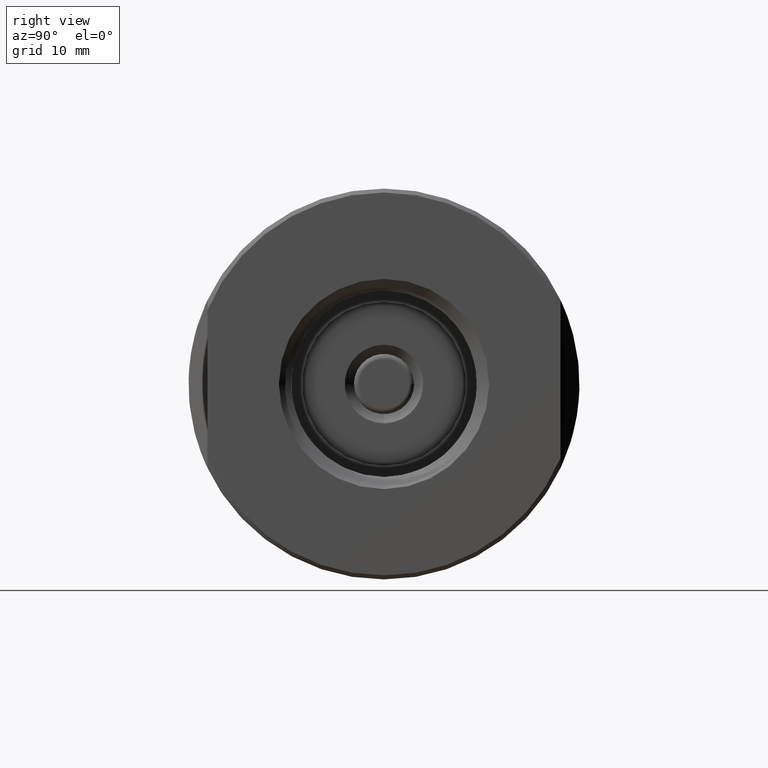
[diagram: clean part render]
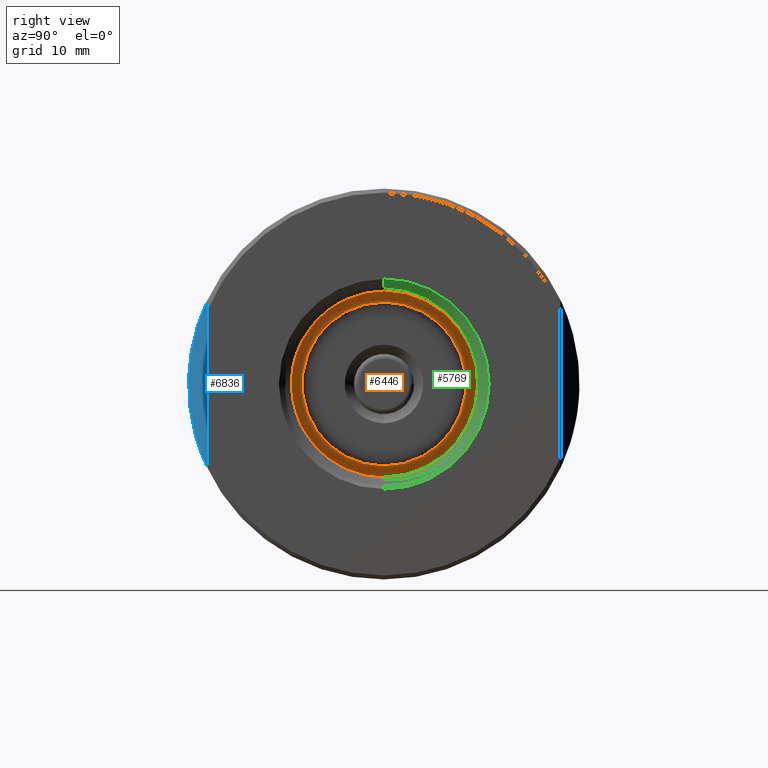
[diagram: same view with three faces highlighted in distinct colors, each labeled with its STEP entity id]
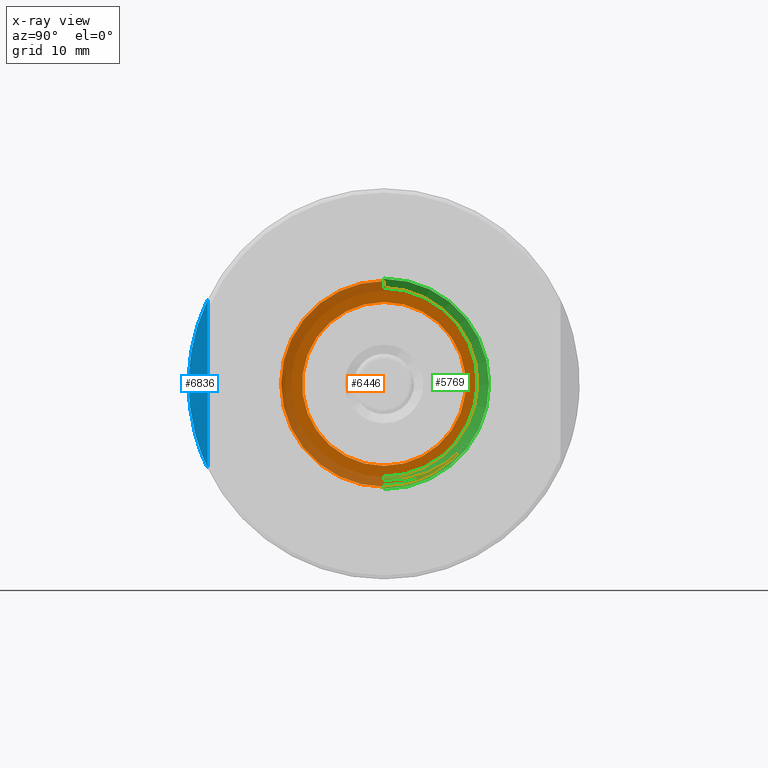
[diagram: x-ray of the same camera — body ghosted, the three highlighted faces saturated]
A machine part, right view with three faces highlighted in distinct colors.
The next image is the same camera in x-ray (body ghosted, the three faces saturated) — at least one of them is partly hidden behind the body in this view.
Their STEP definitions:

[orange] entity #6446 — the highlighted planar face has unit normal (1, 0, 0).
#372 = CIRCLE ( 'NONE', #11230, 0.4060000000000002496 ) ;
#504 = ORIENTED_EDGE ( 'NONE', *, *, #1006, .F. ) ;
#525 = CARTESIAN_POINT ( 'NONE',  ( 0.7500000000000001110, 0.0000000000000000000, 0.0000000000000000000 ) ) ;
#687 = DIRECTION ( 'NONE',  ( -1.000000000000000000, -0.0000000000000000000, -0.0000000000000000000 ) ) ;
#1006 = EDGE_CURVE ( 'NONE', #2349, #2703, #1699, .T. ) ;
#1699 = CIRCLE ( 'NONE', #5213, 0.5100000000000002309 ) ;
#1775 = AXIS2_PLACEMENT_3D ( 'NONE', #11449, #1949, #6169 ) ;
#1949 = DIRECTION ( 'NONE',  ( 1.000000000000000000, 0.0000000000000000000, 0.0000000000000000000 ) ) ;
#2349 = VERTEX_POINT ( 'NONE', #2555 ) ;
#2359 = AXIS2_PLACEMENT_3D ( 'NONE', #525, #5060, #2924 ) ;
#2555 = CARTESIAN_POINT ( 'NONE',  ( 0.7500000000000001110, 6.245698675651503551E-17, -0.5100000000000002309 ) ) ;
#2703 = VERTEX_POINT ( 'NONE', #10232 ) ;
#2853 = FACE_OUTER_BOUND ( 'NONE', #12001, .T. ) ;
#2924 = DIRECTION ( 'NONE',  ( 0.0000000000000000000, 0.0000000000000000000, 1.000000000000000000 ) ) ;
#3735 = ORIENTED_EDGE ( 'NONE', *, *, #7718, .T. ) ;
#3925 = DIRECTION ( 'NONE',  ( 0.0000000000000000000, 0.0000000000000000000, 1.000000000000000000 ) ) ;
#4737 = DIRECTION ( 'NONE',  ( -1.000000000000000000, -0.0000000000000000000, -0.0000000000000000000 ) ) ;
#5060 = DIRECTION ( 'NONE',  ( -1.000000000000000000, -0.0000000000000000000, -0.0000000000000000000 ) ) ;
#5213 = AXIS2_PLACEMENT_3D ( 'NONE', #5944, #687, #12064 ) ;
#5944 = CARTESIAN_POINT ( 'NONE',  ( 0.7500000000000001110, 0.0000000000000000000, 0.0000000000000000000 ) ) ;
#6169 = DIRECTION ( 'NONE',  ( 0.0000000000000000000, 0.0000000000000000000, -1.000000000000000000 ) ) ;
#6241 = VERTEX_POINT ( 'NONE', #6730 ) ;
#6446 = ADVANCED_FACE ( 'NONE', ( #12356, #2853 ), #7976, .T. ) ;
#6567 = CARTESIAN_POINT ( 'NONE',  ( 0.7500000000000001110, 0.0000000000000000000, 0.0000000000000000000 ) ) ;
#6577 = CIRCLE ( 'NONE', #13452, 0.4060000000000002496 ) ;
#6730 = CARTESIAN_POINT ( 'NONE',  ( 0.7500000000000001110, 0.0000000000000000000, 0.4060000000000002496 ) ) ;
#7706 = ORIENTED_EDGE ( 'NONE', *, *, #12546, .T. ) ;
#7718 = EDGE_CURVE ( 'NONE', #6241, #11073, #372, .T. ) ;
#7854 = ORIENTED_EDGE ( 'NONE', *, *, #11459, .F. ) ;
#7976 = PLANE ( 'NONE',  #1775 ) ;
#9107 = CARTESIAN_POINT ( 'NONE',  ( 0.7500000000000001110, 0.0000000000000000000, 0.0000000000000000000 ) ) ;
#10232 = CARTESIAN_POINT ( 'NONE',  ( 0.7500000000000001110, 0.0000000000000000000, 0.5100000000000002309 ) ) ;
#10811 = DIRECTION ( 'NONE',  ( -1.000000000000000000, -0.0000000000000000000, -0.0000000000000000000 ) ) ;
#11073 = VERTEX_POINT ( 'NONE', #12461 ) ;
#11230 = AXIS2_PLACEMENT_3D ( 'NONE', #6567, #10811, #3925 ) ;
#11344 = EDGE_LOOP ( 'NONE', ( #3735, #7706 ) ) ;
#11449 = CARTESIAN_POINT ( 'NONE',  ( 0.7500000000000001110, 0.0000000000000000000, 0.0000000000000000000 ) ) ;
#11459 = EDGE_CURVE ( 'NONE', #2703, #2349, #12986, .T. ) ;
#12001 = EDGE_LOOP ( 'NONE', ( #7854, #504 ) ) ;
#12064 = DIRECTION ( 'NONE',  ( 0.0000000000000000000, 0.0000000000000000000, 1.000000000000000000 ) ) ;
#12356 = FACE_BOUND ( 'NONE', #11344, .T. ) ;
#12461 = CARTESIAN_POINT ( 'NONE',  ( 0.7500000000000001110, 4.972066004538257186E-17, -0.4060000000000002496 ) ) ;
#12546 = EDGE_CURVE ( 'NONE', #11073, #6241, #6577, .T. ) ;
#12986 = CIRCLE ( 'NONE', #2359, 0.5100000000000002309 ) ;
#13213 = DIRECTION ( 'NONE',  ( 0.0000000000000000000, 0.0000000000000000000, 1.000000000000000000 ) ) ;
#13452 = AXIS2_PLACEMENT_3D ( 'NONE', #9107, #4737, #13213 ) ;

[blue] entity #6836 — the highlighted planar face has unit normal (-0.7071, 0.7071, 0).
#670 = PLANE ( 'NONE',  #11429 ) ;
#964 = CARTESIAN_POINT ( 'NONE',  ( 1.199999999999999734, -0.8750000000000001110, 0.4157542092390650867 ) ) ;
#1529 = CARTESIAN_POINT ( 'NONE',  ( 1.199999999999999734, -0.8750000000000001110, -0.4157542092390651978 ) ) ;
#1547 = VERTEX_POINT ( 'NONE', #964 ) ;
#2678 = CARTESIAN_POINT ( 'NONE',  ( 1.199999999999999734, -0.8750000000000001110, -0.9687500000000000000 ) ) ;
#2820 = FACE_OUTER_BOUND ( 'NONE', #12448, .T. ) ;
#3083 = CARTESIAN_POINT ( 'NONE',  ( 1.072844827586208805, -1.002155172413792927, -0.1481423044415057788 ) ) ;
#3260 = VECTOR ( 'NONE', #5059, 39.37007874015748143 ) ;
#4221 = LINE ( 'NONE', #10685, #3260 ) ;
#4319 = VERTEX_POINT ( 'NONE', #1529 ) ;
#5059 = DIRECTION ( 'NONE',  ( -0.0000000000000000000, -0.0000000000000000000, 1.000000000000000000 ) ) ;
#6836 = ADVANCED_FACE ( 'NONE', ( #2820 ), #670, .F. ) ;
#7242 = CARTESIAN_POINT ( 'NONE',  ( 1.199999999999999734, -0.8750000000000001110, 0.4157542092390650867 ) ) ;
#7297 =( BOUNDED_CURVE ( )  B_SPLINE_CURVE ( 3, ( #7242, #11407, #3083, #10430 ),
 .UNSPECIFIED., .F., .F. ) 
 B_SPLINE_CURVE_WITH_KNOTS ( ( 4, 4 ),
 ( 5.839616494063812446, 6.726754120295360018 ),
 .UNSPECIFIED. ) 
 CURVE ( )  GEOMETRIC_REPRESENTATION_ITEM ( )  RATIONAL_B_SPLINE_CURVE ( ( 1.000000000000000000, 0.9354838709677417707, 0.9354838709677417707, 1.000000000000000000 ) ) 
 REPRESENTATION_ITEM ( '' )  );
#8008 = DIRECTION ( 'NONE',  ( -0.7071067811865532349, 0.7071067811865419106, 0.0000000000000000000 ) ) ;
#8063 = ORIENTED_EDGE ( 'NONE', *, *, #12792, .T. ) ;
#10148 = EDGE_CURVE ( 'NONE', #4319, #1547, #4221, .T. ) ;
#10430 = CARTESIAN_POINT ( 'NONE',  ( 1.199999999999999734, -0.8750000000000001110, -0.4157542092390651978 ) ) ;
#10685 = CARTESIAN_POINT ( 'NONE',  ( 1.199999999999999734, -0.8750000000000001110, -0.9687500000000000000 ) ) ;
#11407 = CARTESIAN_POINT ( 'NONE',  ( 1.072844827586208361, -1.002155172413793149, 0.1481423044415061119 ) ) ;
#11429 = AXIS2_PLACEMENT_3D ( 'NONE', #2678, #8008, #12247 ) ;
#12247 = DIRECTION ( 'NONE',  ( -0.7071067811865417996, -0.7071067811865531239, 0.0000000000000000000 ) ) ;
#12448 = EDGE_LOOP ( 'NONE', ( #8063, #12779 ) ) ;
#12779 = ORIENTED_EDGE ( 'NONE', *, *, #10148, .T. ) ;
#12792 = EDGE_CURVE ( 'NONE', #1547, #4319, #7297, .T. ) ;

[green] entity #5769 — the highlighted conical surface has half-angle 45 deg.
#244 = ORIENTED_EDGE ( 'NONE', *, *, #9735, .F. ) ;
#692 = CARTESIAN_POINT ( 'NONE',  ( 1.735105489583332883, 0.3399376550070813408, -0.3764138382125138960 ) ) ;
#757 = CARTESIAN_POINT ( 'NONE',  ( 1.735105489583333771, 0.2315901147494610623, -0.4503117040086042633 ) ) ;
#817 = CARTESIAN_POINT ( 'NONE',  ( 1.705549805675604436, 0.07813379816517330989, 0.4717761613560229605 ) ) ;
#826 = CARTESIAN_POINT ( 'NONE',  ( 1.750000000000000222, 6.380409823557714570E-17, 0.5210000000000003517 ) ) ;
#896 = CARTESIAN_POINT ( 'NONE',  ( 1.735105489583333549, 0.2743456326043953730, -0.4256120403543640629 ) ) ;
#1167 = CARTESIAN_POINT ( 'NONE',  ( 1.728633566007971245, 0.3563239906897980869, -0.3508330696391170345 ) ) ;
#1653 = CARTESIAN_POINT ( 'NONE',  ( 1.690362209075172650, 0.4254981139383812172, -0.1794479591253059225 ) ) ;
#1856 = CARTESIAN_POINT ( 'NONE',  ( 1.697096345435203490, 0.4315136513218529313, 0.1856887445532198477 ) ) ;
#1864 = LINE ( 'NONE', #826, #6410 ) ;
#1870 = EDGE_CURVE ( 'NONE', #8985, #5486, #7518, .T. ) ;
#1923 = CARTESIAN_POINT ( 'NONE',  ( 1.691764439014670440, 0.4511566092854666921, -0.1048461905209863571 ) ) ;
#2294 = VERTEX_POINT ( 'NONE', #10956 ) ;
#2332 = CARTESIAN_POINT ( 'NONE',  ( 1.710448451871117381, 0.1019450186204023806, -0.4709674594822276794 ) ) ;
#2337 = DIRECTION ( 'NONE',  ( 0.7071067811865471286, 0.0000000000000000000, -0.7071067811865479058 ) ) ;
#2374 = AXIS2_PLACEMENT_3D ( 'NONE', #5512, #9746, #3501 ) ;
#2768 = CARTESIAN_POINT ( 'NONE',  ( 1.735105489583333549, 0.2166444999134556626, -0.4576914699578360501 ) ) ;
#2896 = CARTESIAN_POINT ( 'NONE',  ( 1.701000615429634433, 0.3059636958882436808, 0.3599368365652217960 ) ) ;
#2905 = CARTESIAN_POINT ( 'NONE',  ( 1.735105489583333327, 0.3147704274700777183, -0.3976629456285684094 ) ) ;
#3039 = CARTESIAN_POINT ( 'NONE',  ( 1.735105489583330440, 0.1072552260203673002, -0.4946100313152834715 ) ) ;
#3047 = LINE ( 'NONE', #11516, #13660 ) ;
#3373 = CARTESIAN_POINT ( 'NONE',  ( 1.709108189972125214, 0.08171611517808829994, -0.4735478324424550189 ) ) ;
#3437 = CARTESIAN_POINT ( 'NONE',  ( 1.713121451273147411, 0.1418298760829944938, -0.4633232011637915537 ) ) ;
#3501 = DIRECTION ( 'NONE',  ( 0.0000000000000000000, 0.0000000000000000000, 1.000000000000000000 ) ) ;
#3788 = CARTESIAN_POINT ( 'NONE',  ( 1.701342967840263176, 0.2909562569640978258, 0.3726171650660089485 ) ) ;
#3834 = CARTESIAN_POINT ( 'NONE',  ( 1.690000000000000613, 0.4166651476434709567, -0.1972591055927326864 ) ) ;
#3855 = CARTESIAN_POINT ( 'NONE',  ( 1.690719748426545488, 0.4331743667808812259, -0.1610381928526049833 ) ) ;
#3867 = ORIENTED_EDGE ( 'NONE', *, *, #13238, .T. ) ;
#3913 = AXIS2_PLACEMENT_3D ( 'NONE', #9754, #12742, #10665 ) ;
#3928 = CARTESIAN_POINT ( 'NONE',  ( 1.699237510878085278, 0.3723998972991347522, 0.2878021436813067990 ) ) ;
#3972 = B_SPLINE_CURVE_WITH_KNOTS ( 'NONE', 3,
 ( #11295, #8226, #817, #13368, #12401, #9192, #13438, #11158, #6915, #3788, #2896, #7123, #9266, #3928, #7187, #12462, #1856, #10310, #8087, #6984, #11358, #9123, #6073, #11425, #4890, #1923, #6147, #3855, #1653, #10384 ),
 .UNSPECIFIED., .F., .F.,
 ( 4, 2, 2, 2, 2, 2, 2, 2, 2, 2, 2, 2, 2, 2, 4 ),
 ( 0.04207468252723946256, 0.04508506492169261914, 0.04809544731614577573, 0.04884804291475906141, 0.04960063851337235402, 0.05110582971059893925, 0.05261102090782552448, 0.05411621210505210278, 0.05712659449950526630, 0.05863178569673184459, 0.06013697689395842982, 0.06164216809118500118, 0.06314735928841158641, 0.06465255048563817164, 0.06615774168286474299 ),
 .UNSPECIFIED. ) ;
#4422 = ORIENTED_EDGE ( 'NONE', *, *, #5929, .T. ) ;
#4431 = VERTEX_POINT ( 'NONE', #7066 ) ;
#4575 = CIRCLE ( 'NONE', #3913, 0.4610000000000004095 ) ;
#4890 = CARTESIAN_POINT ( 'NONE',  ( 1.692475411645871120, 0.4591044630337214882, -0.06645775330980892293 ) ) ;
#5041 = CARTESIAN_POINT ( 'NONE',  ( 1.735105489583333771, 0.2604081636982264469, -0.4342835482678558678 ) ) ;
#5143 = B_SPLINE_CURVE_WITH_KNOTS ( 'NONE', 3,
 ( #12341, #6224, #8368, #692, #2905, #896, #5041, #757, #2768, #5175, #8236, #3039 ),
 .UNSPECIFIED., .F., .F.,
 ( 4, 2, 2, 2, 2, 4 ),
 ( 8.925400940993412704E-17, 0.002531254388370260573, 0.005062508776740431808, 0.006328135970925517426, 0.007593763165110603043, 0.01012501755348077341 ),
 .UNSPECIFIED. ) ;
#5175 = CARTESIAN_POINT ( 'NONE',  ( 1.735105489583333771, 0.1711270522692701357, -0.4774437310114533206 ) ) ;
#5239 = CARTESIAN_POINT ( 'NONE',  ( 1.735105489583330440, 0.1072552260203673002, -0.4946100313152834715 ) ) ;
#5292 = EDGE_LOOP ( 'NONE', ( #6140, #6250, #9456, #7721, #9925, #6774, #3867, #4422, #244 ) ) ;
#5331 = EDGE_CURVE ( 'NONE', #5486, #11739, #5143, .T. ) ;
#5379 = CARTESIAN_POINT ( 'NONE',  ( 1.729934821136152490, 0.3714001862166844692, -0.3367700987846439786 ) ) ;
#5419 = EDGE_CURVE ( 'NONE', #2294, #11039, #1864, .T. ) ;
#5486 = VERTEX_POINT ( 'NONE', #13449 ) ;
#5512 = CARTESIAN_POINT ( 'NONE',  ( 1.750000000000000222, 0.0000000000000000000, 0.0000000000000000000 ) ) ;
#5541 = EDGE_CURVE ( 'NONE', #7185, #6996, #4575, .T. ) ;
#5585 = CARTESIAN_POINT ( 'NONE',  ( 1.714454192409515354, 0.1614857635962404780, -0.4582590288408147638 ) ) ;
#5614 = VERTEX_POINT ( 'NONE', #5651 ) ;
#5651 = CARTESIAN_POINT ( 'NONE',  ( 1.750000000000000222, 0.0000000000000000000, -0.5210000000000003517 ) ) ;
#5769 = ADVANCED_FACE ( 'NONE', ( #13361 ), #8968, .F. ) ;
#5929 = EDGE_CURVE ( 'NONE', #4431, #5614, #12980, .T. ) ;
#6073 = CARTESIAN_POINT ( 'NONE',  ( 1.693563568321730495, 0.4649257187585034146, -0.007475247026071688179 ) ) ;
#6136 = CARTESIAN_POINT ( 'NONE',  ( 1.690000000000000169, 0.0000000000000000000, -0.4610000000000004095 ) ) ;
#6140 = ORIENTED_EDGE ( 'NONE', *, *, #5419, .F. ) ;
#6147 = CARTESIAN_POINT ( 'NONE',  ( 1.691413249400419261, 0.4459783372238210197, -0.1237640555828217470 ) ) ;
#6196 = CARTESIAN_POINT ( 'NONE',  ( 1.703805758769586509, 5.814693526939043062E-17, -0.4748057587695864168 ) ) ;
#6224 = CARTESIAN_POINT ( 'NONE',  ( 1.735105489583332883, 0.4068928372539713512, -0.3027951886279911520 ) ) ;
#6250 = ORIENTED_EDGE ( 'NONE', *, *, #8343, .T. ) ;
#6410 = VECTOR ( 'NONE', #7196, 39.37007874015748143 ) ;
#6428 = CARTESIAN_POINT ( 'NONE',  ( 1.717112655729410964, 0.2002188998729878266, -0.4456226803555695670 ) ) ;
#6563 = CARTESIAN_POINT ( 'NONE',  ( 1.733813948001161620, 0.4127096465590665009, -0.2914257024124631834 ) ) ;
#6703 = CARTESIAN_POINT ( 'NONE',  ( 1.724782986129905327, 0.3089689642396739599, -0.3898803197382708086 ) ) ;
#6709 = CARTESIAN_POINT ( 'NONE',  ( 1.735105489583330440, 0.1072552260203673002, -0.4946100313152834715 ) ) ;
#6774 = ORIENTED_EDGE ( 'NONE', *, *, #5331, .T. ) ;
#6915 = CARTESIAN_POINT ( 'NONE',  ( 1.701854416229283240, 0.2671261132641344904, 0.3902982738047824363 ) ) ;
#6984 = CARTESIAN_POINT ( 'NONE',  ( 1.695004347877260287, 0.4609742871777648965, 0.07104902491029997658 ) ) ;
#6996 = VERTEX_POINT ( 'NONE', #6136 ) ;
#7051 = DIRECTION ( 'NONE',  ( 1.000000000000000000, 0.0000000000000000000, 0.0000000000000000000 ) ) ;
#7066 = CARTESIAN_POINT ( 'NONE',  ( 1.733322654032390497, 6.176171239982651428E-17, -0.5043226540323906271 ) ) ;
#7123 = CARTESIAN_POINT ( 'NONE',  ( 1.700304239513182436, 0.3342637356695998263, 0.3328350488628295523 ) ) ;
#7185 = VERTEX_POINT ( 'NONE', #3834 ) ;
#7187 = CARTESIAN_POINT ( 'NONE',  ( 1.698874198717063244, 0.3839866621237449928, 0.2715214297394951681 ) ) ;
#7196 = DIRECTION ( 'NONE',  ( 0.7071067811865471286, 8.659560562354937789E-17, 0.7071067811865479058 ) ) ;
#7264 = CARTESIAN_POINT ( 'NONE',  ( 1.734498835624100899, 0.07184531468108064367, -0.5016678484317851350 ) ) ;
#7518 = B_SPLINE_CURVE_WITH_KNOTS ( 'NONE', 3,
 ( #12817, #8642, #9690, #3373, #2332, #3437, #5585, #6428, #10666, #9821, #6703, #1167, #5379, #7675, #6563, #13018 ),
 .UNSPECIFIED., .F., .F.,
 ( 4, 2, 2, 2, 2, 2, 2, 4 ),
 ( 0.005234525762777851587, 0.006795285593150467846, 0.008356045423523084104, 0.009916805253895700362, 0.01147756508426831662, 0.01459908474501354914, 0.01615984457538616886, 0.01772060440575878165 ),
 .UNSPECIFIED. ) ;
#7675 = CARTESIAN_POINT ( 'NONE',  ( 1.732521581112400177, 0.3995497242716025132, -0.3071001517598367925 ) ) ;
#7721 = ORIENTED_EDGE ( 'NONE', *, *, #10678, .T. ) ;
#8087 = CARTESIAN_POINT ( 'NONE',  ( 1.695710188821043962, 0.4540601359905039880, 0.1096950244673936953 ) ) ;
#8226 = CARTESIAN_POINT ( 'NONE',  ( 1.706239513797341845, 0.03930395119715816149, 0.4772395137973721169 ) ) ;
#8229 = CARTESIAN_POINT ( 'NONE',  ( 1.733322654032390497, 6.176171239982651428E-17, -0.5043226540323906271 ) ) ;
#8236 = CARTESIAN_POINT ( 'NONE',  ( 1.735105489583443017, 0.1397261569933139769, -0.4875687729097201162 ) ) ;
#8343 = EDGE_CURVE ( 'NONE', #2294, #7185, #3972, .T. ) ;
#8368 = CARTESIAN_POINT ( 'NONE',  ( 1.735105489583333771, 0.3861972694174813370, -0.3287805590117387489 ) ) ;
#8527 = VECTOR ( 'NONE', #12909, 39.37007874015748143 ) ;
#8642 = CARTESIAN_POINT ( 'NONE',  ( 1.705100699215124527, 0.02026520598367325537, -0.4761006992151244344 ) ) ;
#8968 = CONICAL_SURFACE ( 'NONE', #11642, 0.5210000000000003517, 0.7853981633974488341 ) ;
#8985 = VERTEX_POINT ( 'NONE', #6196 ) ;
#9123 = CARTESIAN_POINT ( 'NONE',  ( 1.693928633485360935, 0.4651781191965488893, 0.01237545489825347782 ) ) ;
#9192 = CARTESIAN_POINT ( 'NONE',  ( 1.702548227251823532, 0.2339219210355329426, 0.4118554995278565500 ) ) ;
#9266 = CARTESIAN_POINT ( 'NONE',  ( 1.699951669321598580, 0.3475573187922357254, 0.3184145501855987770 ) ) ;
#9401 = CARTESIAN_POINT ( 'NONE',  ( 1.733904472670205310, 0.03609349210519124940, -0.5049044726702049957 ) ) ;
#9456 = ORIENTED_EDGE ( 'NONE', *, *, #5541, .T. ) ;
#9690 = CARTESIAN_POINT ( 'NONE',  ( 1.706420345762929669, 0.04066294132240173831, -0.4761280403041199261 ) ) ;
#9735 = EDGE_CURVE ( 'NONE', #11039, #5614, #13236, .T. ) ;
#9746 = DIRECTION ( 'NONE',  ( -1.000000000000000000, -0.0000000000000000000, -0.0000000000000000000 ) ) ;
#9754 = CARTESIAN_POINT ( 'NONE',  ( 1.690000000000000169, 0.0000000000000000000, 0.0000000000000000000 ) ) ;
#9821 = CARTESIAN_POINT ( 'NONE',  ( 1.722348897798504419, 0.2747910198399939885, -0.4117579036155290528 ) ) ;
#9925 = ORIENTED_EDGE ( 'NONE', *, *, #1870, .T. ) ;
#10310 = CARTESIAN_POINT ( 'NONE',  ( 1.696059972770238566, 0.4493357789290846060, 0.1289764089614731657 ) ) ;
#10384 = CARTESIAN_POINT ( 'NONE',  ( 1.690000000000000613, 0.4166651476434709567, -0.1972591055927326864 ) ) ;
#10620 = B_SPLINE_CURVE_WITH_KNOTS ( 'NONE', 3,
 ( #5239, #7264, #9401, #8229 ),
 .UNSPECIFIED., .F., .F.,
 ( 4, 4 ),
 ( 0.0000000000000000000, 0.002735803146162982952 ),
 .UNSPECIFIED. ) ;
#10665 = DIRECTION ( 'NONE',  ( 0.0000000000000000000, 0.0000000000000000000, 1.000000000000000000 ) ) ;
#10666 = CARTESIAN_POINT ( 'NONE',  ( 1.718447217033012731, 0.2194199907454531528, -0.4379826835920745953 ) ) ;
#10678 = EDGE_CURVE ( 'NONE', #6996, #8985, #3047, .T. ) ;
#10956 = CARTESIAN_POINT ( 'NONE',  ( 1.706908102481075051, -3.649741850700877862E-13, 0.4779081024810754585 ) ) ;
#11039 = VERTEX_POINT ( 'NONE', #13640 ) ;
#11158 = CARTESIAN_POINT ( 'NONE',  ( 1.702027710263759319, 0.2589413600497463275, 0.3959827945621436363 ) ) ;
#11288 = DIRECTION ( 'NONE',  ( 0.0000000000000000000, 0.0000000000000000000, -1.000000000000000000 ) ) ;
#11295 = CARTESIAN_POINT ( 'NONE',  ( 1.706908102481075051, -3.649741850700877862E-13, 0.4779081024810754585 ) ) ;
#11358 = CARTESIAN_POINT ( 'NONE',  ( 1.694648055476740023, 0.4631978929666618616, 0.05158511170024137477 ) ) ;
#11425 = CARTESIAN_POINT ( 'NONE',  ( 1.692835194357283912, 0.4618742070092419771, -0.04698721840497274010 ) ) ;
#11516 = CARTESIAN_POINT ( 'NONE',  ( 1.750000000000000222, 0.0000000000000000000, -0.5210000000000003517 ) ) ;
#11642 = AXIS2_PLACEMENT_3D ( 'NONE', #12320, #7051, #11288 ) ;
#11739 = VERTEX_POINT ( 'NONE', #6709 ) ;
#12320 = CARTESIAN_POINT ( 'NONE',  ( 1.750000000000000222, 0.0000000000000000000, 0.0000000000000000000 ) ) ;
#12341 = CARTESIAN_POINT ( 'NONE',  ( 1.735105489583333549, 0.4249397752333781697, -0.2748980793148469992 ) ) ;
#12401 = CARTESIAN_POINT ( 'NONE',  ( 1.703419899927845815, 0.1911348796822640028, 0.4359880787356258391 ) ) ;
#12462 = CARTESIAN_POINT ( 'NONE',  ( 1.697800134886498613, 0.4151466572457887527, 0.2213105125250410810 ) ) ;
#12662 = CARTESIAN_POINT ( 'NONE',  ( 1.750000000000000222, 0.0000000000000000000, -0.5210000000000003517 ) ) ;
#12742 = DIRECTION ( 'NONE',  ( -1.000000000000000000, -0.0000000000000000000, -0.0000000000000000000 ) ) ;
#12817 = CARTESIAN_POINT ( 'NONE',  ( 1.703805758769586509, 5.814693526939043062E-17, -0.4748057587695864168 ) ) ;
#12909 = DIRECTION ( 'NONE',  ( 0.7071067811865471286, 0.0000000000000000000, -0.7071067811865479058 ) ) ;
#12980 = LINE ( 'NONE', #12662, #8527 ) ;
#13018 = CARTESIAN_POINT ( 'NONE',  ( 1.735105489583333549, 0.4249397752333781697, -0.2748980793148469992 ) ) ;
#13236 = CIRCLE ( 'NONE', #2374, 0.5210000000000003517 ) ;
#13238 = EDGE_CURVE ( 'NONE', #11739, #4431, #10620, .T. ) ;
#13361 = FACE_OUTER_BOUND ( 'NONE', #5292, .T. ) ;
#13368 = CARTESIAN_POINT ( 'NONE',  ( 1.704125829772841882, 0.1548145156351539986, 0.4509489321598043610 ) ) ;
#13438 = CARTESIAN_POINT ( 'NONE',  ( 1.702374383203615338, 0.2423498154646673286, 0.4067525789394903502 ) ) ;
#13449 = CARTESIAN_POINT ( 'NONE',  ( 1.735105489583333549, 0.4249397752333781697, -0.2748980793148469992 ) ) ;
#13640 = CARTESIAN_POINT ( 'NONE',  ( 1.750000000000000222, 6.380409823557714570E-17, 0.5210000000000003517 ) ) ;
#13660 = VECTOR ( 'NONE', #2337, 39.37007874015748143 ) ;